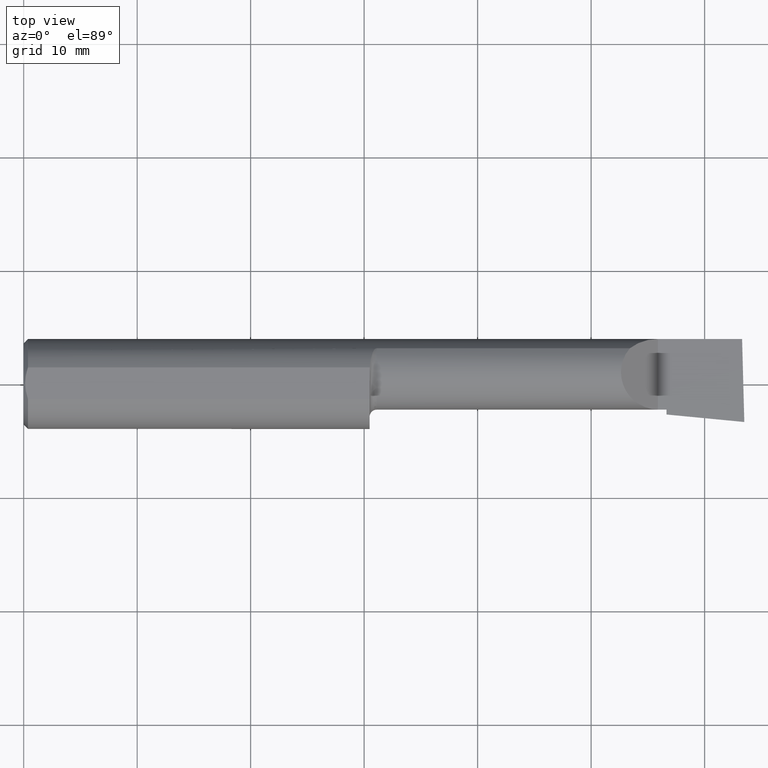
[diagram: clean part render]
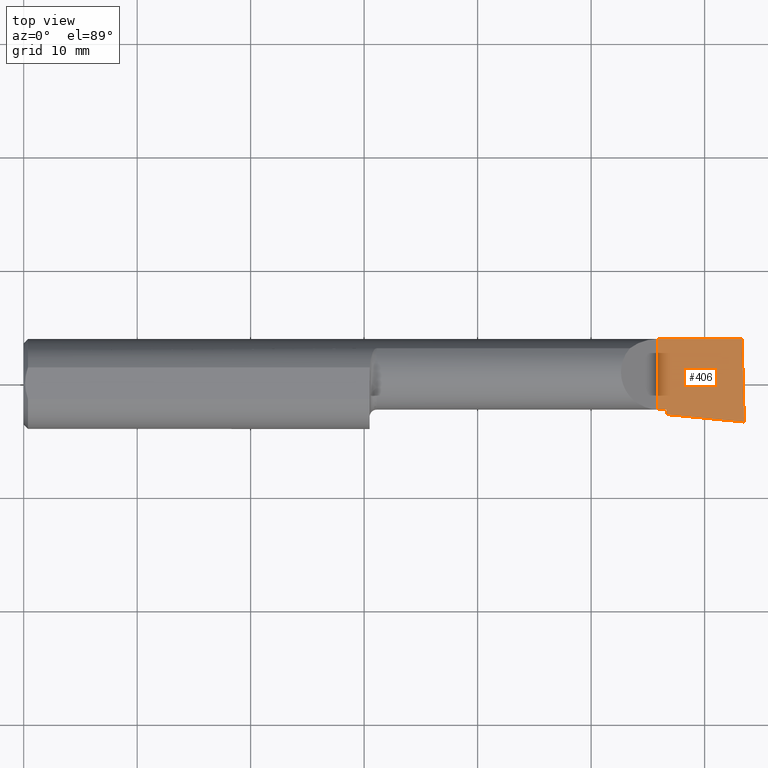
[diagram: same view with one face highlighted and labeled with its STEP entity id]
A machine part, top view. The second image highlights one B-rep face of the part: STEP entity #406.
In plain terms, the highlighted planar face has unit normal (-0, 0, -1).
Its self-contained STEP definition (entity closure, byte-faithful):
#8 = LINE ( 'NONE', #337, #645 ) ;
#14 = EDGE_CURVE ( 'NONE', #144, #535, #437, .T. ) ;
#23 = VERTEX_POINT ( 'NONE', #219 ) ;
#31 = DIRECTION ( 'NONE',  ( -0.02677973311239118664, 0.9996413586354002678, 2.612414329932813452E-18 ) ) ;
#32 = EDGE_LOOP ( 'NONE', ( #694, #669, #361, #309, #411, #679 ) ) ;
#54 = VECTOR ( 'NONE', #110, 39.37007874015748143 ) ;
#75 = LINE ( 'NONE', #440, #522 ) ;
#80 = VECTOR ( 'NONE', #31, 39.37007874015748854 ) ;
#95 = EDGE_CURVE ( 'NONE', #23, #140, #8, .T. ) ;
#96 = VERTEX_POINT ( 'NONE', #587 ) ;
#110 = DIRECTION ( 'NONE',  ( -6.829619984160658816E-18, -1.000000000000000000, 6.755756298638184848E-34 ) ) ;
#140 = VERTEX_POINT ( 'NONE', #298 ) ;
#144 = VERTEX_POINT ( 'NONE', #354 ) ;
#157 = EDGE_CURVE ( 'NONE', #535, #96, #75, .T. ) ;
#172 = CARTESIAN_POINT ( 'NONE',  ( 2.200000000000000178, -0.2500000000000000555, 9.797174393178826150E-17 ) ) ;
#178 = CARTESIAN_POINT ( 'NONE',  ( 2.229999999999999982, -0.2500000000000000555, 9.500418952277011559E-17 ) ) ;
#204 = PLANE ( 'NONE',  #566 ) ;
#217 = CARTESIAN_POINT ( 'NONE',  ( 2.500000000000000000, -0.2500000000000000555, 6.829619984160658046E-17 ) ) ;
#219 = CARTESIAN_POINT ( 'NONE',  ( 2.229999999999999982, -0.1059019569866646027, 9.550796696599670198E-17 ) ) ;
#248 = CARTESIAN_POINT ( 'NONE',  ( 2.200000000000000178, 0.1560999999999997667, 9.797174393178826150E-17 ) ) ;
#275 = DIRECTION ( 'NONE',  ( 1.000000000000000000, -6.829619984160658046E-18, 0.000000000000000000 ) ) ;
#298 = CARTESIAN_POINT ( 'NONE',  ( 2.500000000000000000, -0.1319000000000001283, 1.024442997624098707E-16 ) ) ;
#301 = DIRECTION ( 'NONE',  ( 1.000000000000000000, 0.000000000000000000, 0.000000000000000000 ) ) ;
#309 = ORIENTED_EDGE ( 'NONE', *, *, #14, .F. ) ;
#311 = LINE ( 'NONE', #517, #80 ) ;
#333 = EDGE_CURVE ( 'NONE', #144, #691, #479, .T. ) ;
#337 = CARTESIAN_POINT ( 'NONE',  ( 2.511267271176985005, -0.1329849148174155893, 6.718165849964441477E-17 ) ) ;
#341 = DIRECTION ( 'NONE',  ( -1.000000000000000000, 0.000000000000000000, 9.891848030060559526E-17 ) ) ;
#354 = CARTESIAN_POINT ( 'NONE',  ( 2.200000000000000178, -0.08890000000000010394, 9.797174393178826150E-17 ) ) ;
#361 = ORIENTED_EDGE ( 'NONE', *, *, #157, .F. ) ;
#374 = DIRECTION ( 'NONE',  ( 0.9953961983671787417, -0.09584575252022418945, -9.831095531899268478E-17 ) ) ;
#377 = EDGE_CURVE ( 'NONE', #140, #96, #311, .T. ) ;
#391 = LINE ( 'NONE', #178, #54 ) ;
#406 = ADVANCED_FACE ( 'NONE', ( #469 ), #204, .F. ) ;
#411 = ORIENTED_EDGE ( 'NONE', *, *, #333, .T. ) ;
#422 = VECTOR ( 'NONE', #275, 39.37007874015748143 ) ;
#426 = EDGE_CURVE ( 'NONE', #691, #23, #391, .T. ) ;
#437 = LINE ( 'NONE', #172, #692 ) ;
#440 = CARTESIAN_POINT ( 'NONE',  ( 3.121792066109142165E-32, 0.1560999999999999333, 3.155924005931204823E-16 ) ) ;
#465 = CARTESIAN_POINT ( 'NONE',  ( -8.735083959741173905E-19, -0.08890000000000003455, 3.155924005931204823E-16 ) ) ;
#469 = FACE_OUTER_BOUND ( 'NONE', #32, .T. ) ;
#479 = LINE ( 'NONE', #465, #422 ) ;
#488 = DIRECTION ( 'NONE',  ( -0.000000000000000000, 1.000000000000000000, -0.000000000000000000 ) ) ;
#516 = CARTESIAN_POINT ( 'NONE',  ( 2.229999999999999982, -0.08890000000000000679, 0.000000000000000000 ) ) ;
#517 = CARTESIAN_POINT ( 'NONE',  ( 2.503161552210378282, -0.2499153041001321018, 6.798346390156494500E-17 ) ) ;
#522 = VECTOR ( 'NONE', #301, 39.37007874015748143 ) ;
#531 = DIRECTION ( 'NONE',  ( -9.891848030060559526E-17, 0.000000000000000000, -1.000000000000000000 ) ) ;
#535 = VERTEX_POINT ( 'NONE', #248 ) ;
#566 = AXIS2_PLACEMENT_3D ( 'NONE', #217, #531, #341 ) ;
#587 = CARTESIAN_POINT ( 'NONE',  ( 2.492284669827090404, 0.1560999999999998500, 6.904452464043948710E-17 ) ) ;
#645 = VECTOR ( 'NONE', #374, 39.37007874015748854 ) ;
#669 = ORIENTED_EDGE ( 'NONE', *, *, #377, .T. ) ;
#679 = ORIENTED_EDGE ( 'NONE', *, *, #426, .T. ) ;
#691 = VERTEX_POINT ( 'NONE', #516 ) ;
#692 = VECTOR ( 'NONE', #488, 39.37007874015748143 ) ;
#694 = ORIENTED_EDGE ( 'NONE', *, *, #95, .T. ) ;